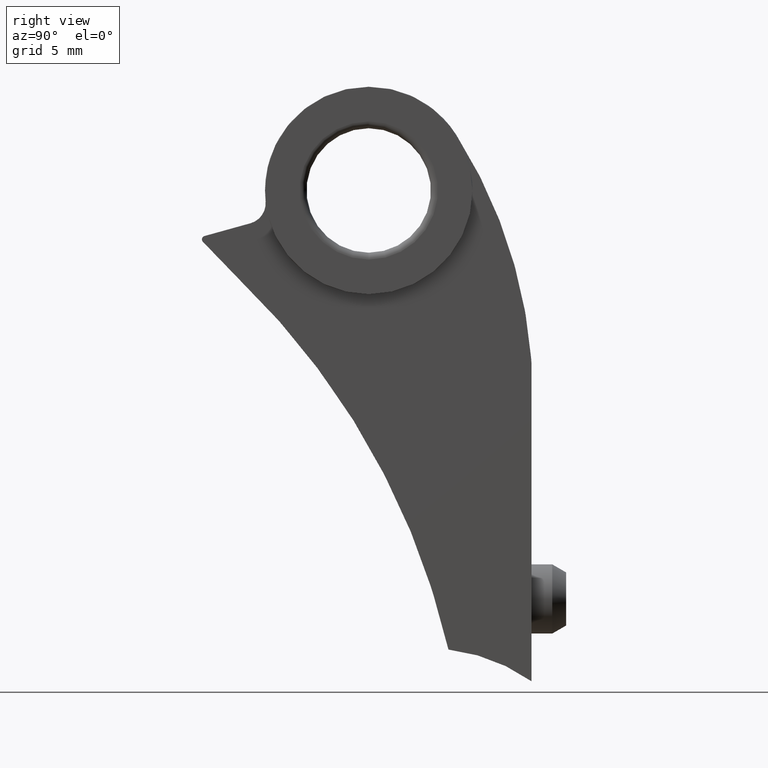
[diagram: clean part render]
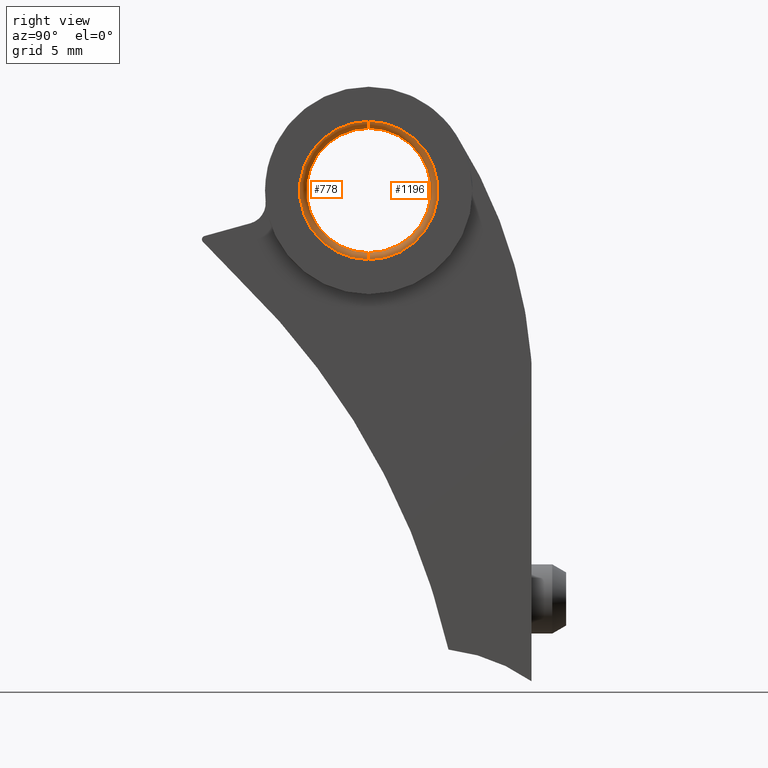
[diagram: same view with one multi-face feature highlighted, each face labeled with its STEP entity id]
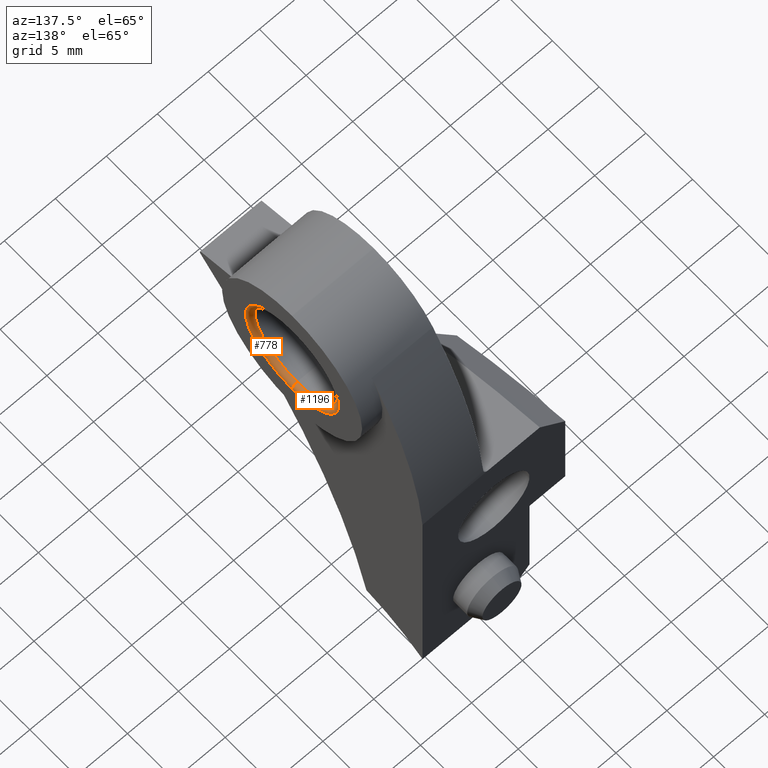
[diagram: same view with one multi-face feature highlighted, each face labeled with its STEP entity id]
A machine part, right view. The highlighted faces form ONE feature: a constant-radius fillet chain: 2 tangent blend faces with common blend radius 0.5 mm. The faces share edges in the B-rep.
A second angle (auxiliary view) of the same feature is appended — it is thin or edge-on in the first view.
Their STEP definitions:
[1] entity #778 (Torus):
#42 = EDGE_LOOP ( 'NONE', ( #577, #1183, #1121, #806 ) ) ;
#87 = AXIS2_PLACEMENT_3D ( 'NONE', #852, #1186, #1289 ) ;
#102 = FACE_OUTER_BOUND ( 'NONE', #42, .T. ) ;
#144 = DIRECTION ( 'NONE',  ( 0.0000000000000000000, 0.0000000000000000000, -1.000000000000000000 ) ) ;
#204 = CIRCLE ( 'NONE', #709, 0.5000000000000004400 ) ;
#225 = CARTESIAN_POINT ( 'NONE',  ( 7.000000000000002700, -26.47209325125959000, 40.49067876071980300 ) ) ;
#305 = CIRCLE ( 'NONE', #763, 0.5000000000000004400 ) ;
#334 = CARTESIAN_POINT ( 'NONE',  ( 7.000000000000002700, -26.47209325125959000, 35.49067876071980300 ) ) ;
#340 = CARTESIAN_POINT ( 'NONE',  ( 7.000000000000002700, -26.47209325125959000, 30.99067876071980600 ) ) ;
#432 = CARTESIAN_POINT ( 'NONE',  ( 7.000000000000002700, -26.47209325125959000, 39.99067876071980300 ) ) ;
#441 = DIRECTION ( 'NONE',  ( 1.000000000000000000, 0.0000000000000000000, -6.052673018837545200E-017 ) ) ;
#448 = DIRECTION ( 'NONE',  ( 0.0000000000000000000, 0.0000000000000000000, -1.000000000000000000 ) ) ;
#469 = CARTESIAN_POINT ( 'NONE',  ( 7.500000000000003600, -26.47209325125959000, 30.49067876071980600 ) ) ;
#498 = AXIS2_PLACEMENT_3D ( 'NONE', #1087, #441, #773 ) ;
#502 = VERTEX_POINT ( 'NONE', #432 ) ;
#534 = CARTESIAN_POINT ( 'NONE',  ( 7.000000000000002700, -26.47209325125959000, 30.49067876071980600 ) ) ;
#577 = ORIENTED_EDGE ( 'NONE', *, *, #1286, .F. ) ;
#578 = AXIS2_PLACEMENT_3D ( 'NONE', #334, #1092, #448 ) ;
#614 = EDGE_CURVE ( 'NONE', #665, #867, #305, .T. ) ;
#632 = CARTESIAN_POINT ( 'NONE',  ( 7.500000000000003600, -26.47209325125959000, 40.49067876071980300 ) ) ;
#665 = VERTEX_POINT ( 'NONE', #469 ) ;
#709 = AXIS2_PLACEMENT_3D ( 'NONE', #225, #1189, #964 ) ;
#763 = AXIS2_PLACEMENT_3D ( 'NONE', #534, #994, #144 ) ;
#765 = CIRCLE ( 'NONE', #578, 4.499999999999997300 ) ;
#773 = DIRECTION ( 'NONE',  ( -6.052673018837545200E-017, 0.0000000000000000000, -1.000000000000000000 ) ) ;
#778 = ADVANCED_FACE ( 'NONE', ( #102 ), #1211, .T. ) ;
#779 = EDGE_CURVE ( 'NONE', #502, #867, #765, .T. ) ;
#806 = ORIENTED_EDGE ( 'NONE', *, *, #779, .F. ) ;
#852 = CARTESIAN_POINT ( 'NONE',  ( 7.500000000000003600, -26.47209325125959000, 35.49067876071980300 ) ) ;
#867 = VERTEX_POINT ( 'NONE', #340 ) ;
#913 = CIRCLE ( 'NONE', #87, 4.999999999999997300 ) ;
#964 = DIRECTION ( 'NONE',  ( 0.0000000000000000000, 0.0000000000000000000, 1.000000000000000000 ) ) ;
#994 = DIRECTION ( 'NONE',  ( 0.0000000000000000000, -1.000000000000000000, -0.0000000000000000000 ) ) ;
#1028 = EDGE_CURVE ( 'NONE', #665, #1239, #913, .T. ) ;
#1087 = CARTESIAN_POINT ( 'NONE',  ( 7.000000000000002700, -26.47209325125959000, 35.49067876071980300 ) ) ;
#1092 = DIRECTION ( 'NONE',  ( 1.000000000000000000, 0.0000000000000000000, -6.052673018837545200E-017 ) ) ;
#1121 = ORIENTED_EDGE ( 'NONE', *, *, #614, .T. ) ;
#1183 = ORIENTED_EDGE ( 'NONE', *, *, #1028, .F. ) ;
#1186 = DIRECTION ( 'NONE',  ( -1.000000000000000000, -0.0000000000000000000, 6.052673018837545200E-017 ) ) ;
#1189 = DIRECTION ( 'NONE',  ( -7.412386638804946900E-033, 1.000000000000000000, -1.224646799147353200E-016 ) ) ;
#1211 = TOROIDAL_SURFACE ( 'NONE', #498, 4.999999999999997300, 0.5000000000000000000 ) ;
#1239 = VERTEX_POINT ( 'NONE', #632 ) ;
#1286 = EDGE_CURVE ( 'NONE', #1239, #502, #204, .T. ) ;
#1289 = DIRECTION ( 'NONE',  ( 0.0000000000000000000, 0.0000000000000000000, -1.000000000000000000 ) ) ;
[2] entity #1196 (Torus):
#72 = EDGE_LOOP ( 'NONE', ( #91, #1298, #262, #862 ) ) ;
#91 = ORIENTED_EDGE ( 'NONE', *, *, #1209, .F. ) ;
#144 = DIRECTION ( 'NONE',  ( 0.0000000000000000000, 0.0000000000000000000, -1.000000000000000000 ) ) ;
#201 = DIRECTION ( 'NONE',  ( 1.000000000000000000, 0.0000000000000000000, -6.052673018837545200E-017 ) ) ;
#204 = CIRCLE ( 'NONE', #709, 0.5000000000000004400 ) ;
#225 = CARTESIAN_POINT ( 'NONE',  ( 7.000000000000002700, -26.47209325125959000, 40.49067876071980300 ) ) ;
#233 = DIRECTION ( 'NONE',  ( 0.0000000000000000000, 0.0000000000000000000, -1.000000000000000000 ) ) ;
#234 = DIRECTION ( 'NONE',  ( 0.0000000000000000000, 0.0000000000000000000, -1.000000000000000000 ) ) ;
#262 = ORIENTED_EDGE ( 'NONE', *, *, #481, .F. ) ;
#264 = AXIS2_PLACEMENT_3D ( 'NONE', #659, #201, #234 ) ;
#305 = CIRCLE ( 'NONE', #763, 0.5000000000000004400 ) ;
#338 = DIRECTION ( 'NONE',  ( -1.000000000000000000, -0.0000000000000000000, 6.052673018837545200E-017 ) ) ;
#340 = CARTESIAN_POINT ( 'NONE',  ( 7.000000000000002700, -26.47209325125959000, 30.99067876071980600 ) ) ;
#374 = TOROIDAL_SURFACE ( 'NONE', #1281, 4.999999999999997300, 0.5000000000000000000 ) ;
#432 = CARTESIAN_POINT ( 'NONE',  ( 7.000000000000002700, -26.47209325125959000, 39.99067876071980300 ) ) ;
#439 = CIRCLE ( 'NONE', #264, 4.499999999999997300 ) ;
#469 = CARTESIAN_POINT ( 'NONE',  ( 7.500000000000003600, -26.47209325125959000, 30.49067876071980600 ) ) ;
#481 = EDGE_CURVE ( 'NONE', #867, #502, #439, .T. ) ;
#502 = VERTEX_POINT ( 'NONE', #432 ) ;
#534 = CARTESIAN_POINT ( 'NONE',  ( 7.000000000000002700, -26.47209325125959000, 30.49067876071980600 ) ) ;
#573 = FACE_OUTER_BOUND ( 'NONE', #72, .T. ) ;
#614 = EDGE_CURVE ( 'NONE', #665, #867, #305, .T. ) ;
#632 = CARTESIAN_POINT ( 'NONE',  ( 7.500000000000003600, -26.47209325125959000, 40.49067876071980300 ) ) ;
#659 = CARTESIAN_POINT ( 'NONE',  ( 7.000000000000002700, -26.47209325125959000, 35.49067876071980300 ) ) ;
#665 = VERTEX_POINT ( 'NONE', #469 ) ;
#709 = AXIS2_PLACEMENT_3D ( 'NONE', #225, #1189, #964 ) ;
#746 = CIRCLE ( 'NONE', #1005, 4.999999999999997300 ) ;
#763 = AXIS2_PLACEMENT_3D ( 'NONE', #534, #994, #144 ) ;
#862 = ORIENTED_EDGE ( 'NONE', *, *, #614, .F. ) ;
#867 = VERTEX_POINT ( 'NONE', #340 ) ;
#964 = DIRECTION ( 'NONE',  ( 0.0000000000000000000, 0.0000000000000000000, 1.000000000000000000 ) ) ;
#994 = DIRECTION ( 'NONE',  ( 0.0000000000000000000, -1.000000000000000000, -0.0000000000000000000 ) ) ;
#1005 = AXIS2_PLACEMENT_3D ( 'NONE', #1093, #338, #233 ) ;
#1037 = DIRECTION ( 'NONE',  ( 1.000000000000000000, 0.0000000000000000000, -6.052673018837545200E-017 ) ) ;
#1093 = CARTESIAN_POINT ( 'NONE',  ( 7.500000000000003600, -26.47209325125959000, 35.49067876071980300 ) ) ;
#1151 = DIRECTION ( 'NONE',  ( -6.052673018837545200E-017, 0.0000000000000000000, -1.000000000000000000 ) ) ;
#1189 = DIRECTION ( 'NONE',  ( -7.412386638804946900E-033, 1.000000000000000000, -1.224646799147353200E-016 ) ) ;
#1196 = ADVANCED_FACE ( 'NONE', ( #573 ), #374, .T. ) ;
#1207 = CARTESIAN_POINT ( 'NONE',  ( 7.000000000000002700, -26.47209325125959000, 35.49067876071980300 ) ) ;
#1209 = EDGE_CURVE ( 'NONE', #1239, #665, #746, .T. ) ;
#1239 = VERTEX_POINT ( 'NONE', #632 ) ;
#1281 = AXIS2_PLACEMENT_3D ( 'NONE', #1207, #1037, #1151 ) ;
#1286 = EDGE_CURVE ( 'NONE', #1239, #502, #204, .T. ) ;
#1298 = ORIENTED_EDGE ( 'NONE', *, *, #1286, .T. ) ;